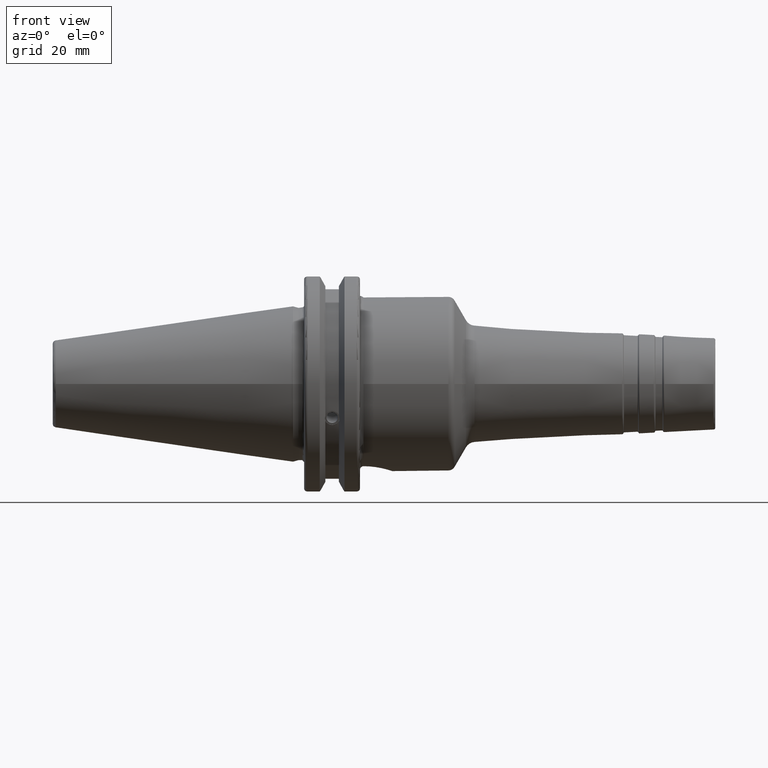
[diagram: clean part render]
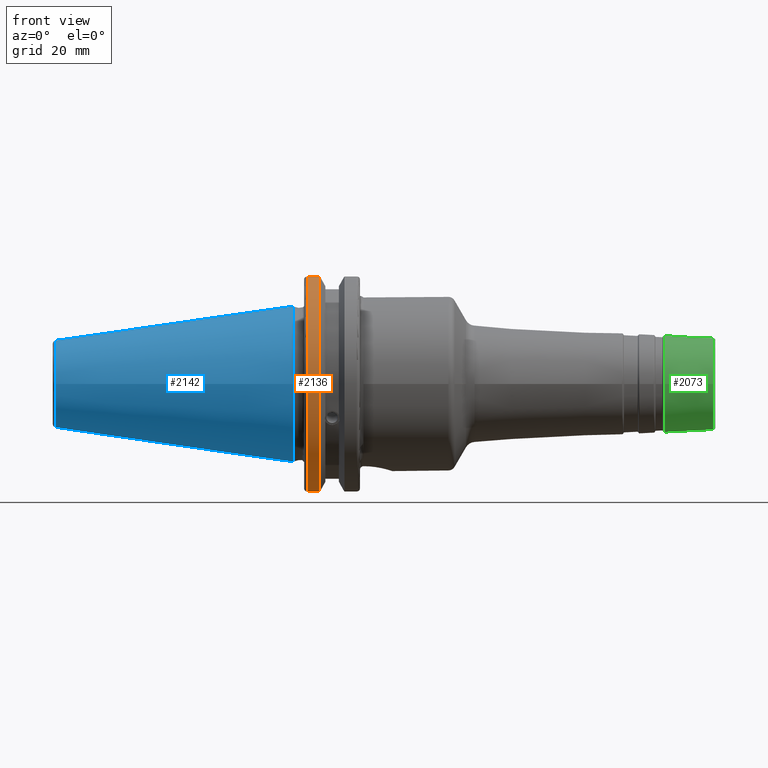
[diagram: same view with three faces highlighted in distinct colors, each labeled with its STEP entity id]
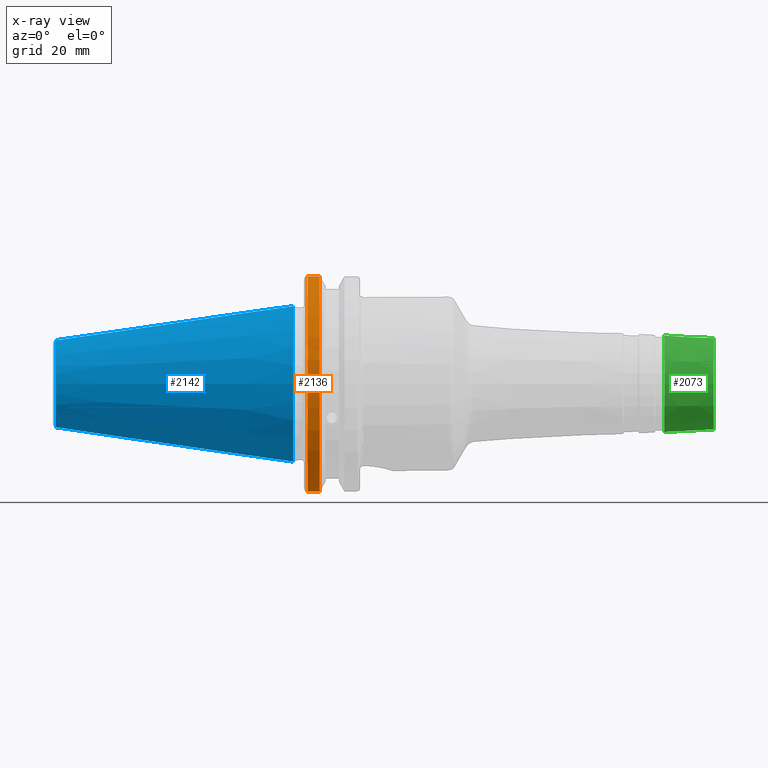
[diagram: x-ray of the same camera — body ghosted, the three highlighted faces saturated]
A machine part, front view with three faces highlighted in distinct colors.
The next image is the same camera in x-ray (body ghosted, the three faces saturated) — at least one of them is partly hidden behind the body in this view.
Their STEP definitions:

[orange] entity #2136 — the highlighted cylindrical surface (partial cylindrical patch) has radius 31.75 mm, axis along (1, 0, 0).
#174=CYLINDRICAL_SURFACE('',#2426,31.75);
#255=FACE_OUTER_BOUND('',#373,.T.);
#373=EDGE_LOOP('',(#1873,#1874,#1875,#1876));
#487=LINE('',#4075,#586);
#488=LINE('',#4081,#587);
#586=VECTOR('',#3040,10.);
#587=VECTOR('',#3043,10.);
#752=CIRCLE('',#2424,31.75);
#753=CIRCLE('',#2427,31.75);
#991=VERTEX_POINT('',#4054);
#992=VERTEX_POINT('',#4063);
#993=VERTEX_POINT('',#4074);
#994=VERTEX_POINT('',#4080);
#1304=EDGE_CURVE('',#991,#992,#752,.T.);
#1306=EDGE_CURVE('',#992,#993,#487,.T.);
#1308=EDGE_CURVE('',#994,#991,#488,.T.);
#1309=EDGE_CURVE('',#993,#994,#753,.T.);
#1873=ORIENTED_EDGE('',*,*,#1304,.F.);
#1874=ORIENTED_EDGE('',*,*,#1308,.F.);
#1875=ORIENTED_EDGE('',*,*,#1309,.F.);
#1876=ORIENTED_EDGE('',*,*,#1306,.F.);
#2136=ADVANCED_FACE('',(#255),#174,.T.);
#2424=AXIS2_PLACEMENT_3D('',#4064,#3036,#3037);
#2426=AXIS2_PLACEMENT_3D('',#4079,#3041,#3042);
#2427=AXIS2_PLACEMENT_3D('',#4082,#3044,#3045);
#3036=DIRECTION('center_axis',(-1.,0.,0.));
#3037=DIRECTION('ref_axis',(0.,-1.,1.60812264967664E-16));
#3040=DIRECTION('',(1.,0.,0.));
#3041=DIRECTION('center_axis',(1.,0.,0.));
#3042=DIRECTION('ref_axis',(0.,-1.,1.22464679914735E-16));
#3043=DIRECTION('',(-1.,0.,0.));
#3044=DIRECTION('center_axis',(1.,0.,0.));
#3045=DIRECTION('ref_axis',(0.,0.,-1.));
#4054=CARTESIAN_POINT('',(4.175,-8.67204822802685,-30.5427254764662));
#4063=CARTESIAN_POINT('',(4.175,-8.67204822802685,30.5427254764662));
#4064=CARTESIAN_POINT('Origin',(4.175,0.,0.));
#4074=CARTESIAN_POINT('',(7.60793323092436,-8.67204822802685,30.5427254764662));
#4075=CARTESIAN_POINT('',(5.39146661546218,-8.67204822802685,30.5427254764662));
#4079=CARTESIAN_POINT('Origin',(5.39146661546218,0.,0.));
#4080=CARTESIAN_POINT('',(7.60793323092436,-8.67204822802685,-30.5427254764662));
#4081=CARTESIAN_POINT('',(5.39146661546218,-8.67204822802685,-30.5427254764662));
#4082=CARTESIAN_POINT('Origin',(7.60793323092436,0.,0.));

[blue] entity #2142 — the highlighted conical surface has half-angle 8.297 deg.
#261=FACE_OUTER_BOUND('',#380,.T.);
#380=EDGE_LOOP('',(#1902,#1903,#1904,#1905,#1906,#1907,#1908));
#490=LINE('',#4138,#589);
#589=VECTOR('',#3081,17.2484375);
#755=CIRCLE('',#2433,12.3966635780937);
#756=CIRCLE('',#2434,12.3966635780937);
#760=CIRCLE('',#2438,12.3966635780937);
#763=CIRCLE('',#2443,22.225);
#764=CIRCLE('',#2444,22.225);
#998=VERTEX_POINT('',#4117);
#999=VERTEX_POINT('',#4118);
#1000=VERTEX_POINT('',#4120);
#1005=VERTEX_POINT('',#4134);
#1006=VERTEX_POINT('',#4135);
#1316=EDGE_CURVE('',#998,#999,#755,.T.);
#1317=EDGE_CURVE('',#999,#1000,#756,.T.);
#1321=EDGE_CURVE('',#1000,#998,#760,.T.);
#1324=EDGE_CURVE('',#1005,#1006,#763,.T.);
#1325=EDGE_CURVE('',#1006,#1005,#764,.T.);
#1326=EDGE_CURVE('',#1006,#999,#490,.T.);
#1902=ORIENTED_EDGE('',*,*,#1324,.F.);
#1903=ORIENTED_EDGE('',*,*,#1325,.F.);
#1904=ORIENTED_EDGE('',*,*,#1326,.T.);
#1905=ORIENTED_EDGE('',*,*,#1316,.F.);
#1906=ORIENTED_EDGE('',*,*,#1321,.F.);
#1907=ORIENTED_EDGE('',*,*,#1317,.F.);
#1908=ORIENTED_EDGE('',*,*,#1326,.F.);
#2057=CONICAL_SURFACE('',#2442,17.2484375,0.144812498238939);
#2142=ADVANCED_FACE('',(#261),#2057,.T.);
#2433=AXIS2_PLACEMENT_3D('',#4119,#3057,#3058);
#2434=AXIS2_PLACEMENT_3D('',#4121,#3059,#3060);
#2438=AXIS2_PLACEMENT_3D('',#4127,#3067,#3068);
#2442=AXIS2_PLACEMENT_3D('',#4133,#3075,#3076);
#2443=AXIS2_PLACEMENT_3D('',#4136,#3077,#3078);
#2444=AXIS2_PLACEMENT_3D('',#4137,#3079,#3080);
#3057=DIRECTION('center_axis',(-1.,0.,0.));
#3058=DIRECTION('ref_axis',(0.,-1.,3.06161699786838E-17));
#3059=DIRECTION('center_axis',(-1.,0.,0.));
#3060=DIRECTION('ref_axis',(0.,-1.,3.06161699786838E-17));
#3067=DIRECTION('center_axis',(-1.,0.,0.));
#3068=DIRECTION('ref_axis',(0.,-1.,3.06161699786838E-17));
#3075=DIRECTION('center_axis',(1.,0.,0.));
#3076=DIRECTION('ref_axis',(0.,1.,0.));
#3077=DIRECTION('center_axis',(1.,0.,0.));
#3078=DIRECTION('ref_axis',(0.,0.,-1.));
#3079=DIRECTION('center_axis',(1.,0.,0.));
#3080=DIRECTION('ref_axis',(0.,0.,-1.));
#3081=DIRECTION('',(-0.989532981063282,0.144306893071729,1.76724974695192E-17));
#4117=CARTESIAN_POINT('',(-67.3943068930717,12.3966635780937,-3.79538359275475E-15));
#4118=CARTESIAN_POINT('',(-67.3943068930718,-12.3966635780937,-1.5181534371019E-15));
#4119=CARTESIAN_POINT('Origin',(-67.3943068930717,0.,-1.89769179637738E-15));
#4120=CARTESIAN_POINT('',(-67.3943068930717,-1.5181534371019E-15,12.3966635780937));
#4121=CARTESIAN_POINT('Origin',(-67.3943068930717,0.,-1.89769179637738E-15));
#4127=CARTESIAN_POINT('Origin',(-67.3943068930717,0.,-1.89769179637738E-15));
#4133=CARTESIAN_POINT('Origin',(-34.125,0.,0.));
#4134=CARTESIAN_POINT('',(0.,22.225,0.));
#4135=CARTESIAN_POINT('',(0.,-22.225,-2.72177751110499E-15));
#4136=CARTESIAN_POINT('Origin',(0.,0.,0.));
#4137=CARTESIAN_POINT('Origin',(0.,0.,0.));
#4138=CARTESIAN_POINT('',(-34.125,-17.2484375,-2.11232437746682E-15));

[green] entity #2073 — the highlighted conical surface has half-angle 3 deg.
#192=FACE_OUTER_BOUND('',#300,.T.);
#300=EDGE_LOOP('',(#1433,#1434,#1435,#1436,#1437,#1438,#1439,#1440));
#417=LINE('',#3361,#516);
#516=VECTOR('',#2584,13.3848185972057);
#636=CIRCLE('',#2228,13.0248324840198);
#637=CIRCLE('',#2229,13.0248324840198);
#638=CIRCLE('',#2230,13.0248324840198);
#640=CIRCLE('',#2233,13.7575507230413);
#641=CIRCLE('',#2234,13.7575507230413);
#642=CIRCLE('',#2235,13.7575507230413);
#813=VERTEX_POINT('',#3351);
#814=VERTEX_POINT('',#3353);
#815=VERTEX_POINT('',#3355);
#816=VERTEX_POINT('',#3360);
#817=VERTEX_POINT('',#3362);
#818=VERTEX_POINT('',#3364);
#1063=EDGE_CURVE('',#813,#814,#636,.T.);
#1064=EDGE_CURVE('',#814,#815,#637,.T.);
#1065=EDGE_CURVE('',#815,#813,#638,.T.);
#1067=EDGE_CURVE('',#814,#816,#417,.T.);
#1068=EDGE_CURVE('',#817,#816,#640,.T.);
#1069=EDGE_CURVE('',#818,#817,#641,.T.);
#1070=EDGE_CURVE('',#816,#818,#642,.T.);
#1433=ORIENTED_EDGE('',*,*,#1065,.F.);
#1434=ORIENTED_EDGE('',*,*,#1064,.F.);
#1435=ORIENTED_EDGE('',*,*,#1067,.T.);
#1436=ORIENTED_EDGE('',*,*,#1068,.F.);
#1437=ORIENTED_EDGE('',*,*,#1069,.F.);
#1438=ORIENTED_EDGE('',*,*,#1070,.F.);
#1439=ORIENTED_EDGE('',*,*,#1067,.F.);
#1440=ORIENTED_EDGE('',*,*,#1063,.F.);
#2044=CONICAL_SURFACE('',#2232,13.3848185972057,0.0523598775598296);
#2073=ADVANCED_FACE('',(#192),#2044,.T.);
#2228=AXIS2_PLACEMENT_3D('',#3354,#2574,#2575);
#2229=AXIS2_PLACEMENT_3D('',#3356,#2576,#2577);
#2230=AXIS2_PLACEMENT_3D('',#3357,#2578,#2579);
#2232=AXIS2_PLACEMENT_3D('',#3359,#2582,#2583);
#2233=AXIS2_PLACEMENT_3D('',#3363,#2585,#2586);
#2234=AXIS2_PLACEMENT_3D('',#3365,#2587,#2588);
#2235=AXIS2_PLACEMENT_3D('',#3366,#2589,#2590);
#2574=DIRECTION('center_axis',(1.,0.,0.));
#2575=DIRECTION('ref_axis',(0.,-1.,3.06161699786838E-17));
#2576=DIRECTION('center_axis',(1.,0.,0.));
#2577=DIRECTION('ref_axis',(0.,-1.,3.06161699786838E-17));
#2578=DIRECTION('center_axis',(1.,0.,0.));
#2579=DIRECTION('ref_axis',(0.,-1.,3.06161699786838E-17));
#2582=DIRECTION('center_axis',(-1.,0.,0.));
#2583=DIRECTION('ref_axis',(0.,1.,0.));
#2584=DIRECTION('',(-0.998629534754574,-0.0523359562429436,-6.40930612932368E-18));
#2585=DIRECTION('center_axis',(-1.,0.,0.));
#2586=DIRECTION('ref_axis',(0.,-1.,3.06161699786838E-17));
#2587=DIRECTION('center_axis',(-1.,0.,0.));
#2588=DIRECTION('ref_axis',(0.,-1.,3.06161699786838E-17));
#2589=DIRECTION('center_axis',(-1.,0.,0.));
#2590=DIRECTION('ref_axis',(0.,-1.,3.06161699786838E-17));
#3351=CARTESIAN_POINT('',(119.526167978121,-1.59508194109854E-15,13.0248324840198));
#3353=CARTESIAN_POINT('',(119.526167978121,-13.0248324840198,-1.59508194109854E-15));
#3354=CARTESIAN_POINT('Origin',(119.526167978121,0.,-1.99385242637317E-15));
#3355=CARTESIAN_POINT('',(119.526167978121,13.0248324840198,-7.97540970549268E-16));
#3356=CARTESIAN_POINT('Origin',(119.526167978121,0.,-1.99385242637317E-15));
#3357=CARTESIAN_POINT('Origin',(119.526167978121,0.,-1.99385242637317E-15));
#3359=CARTESIAN_POINT('Origin',(112.657223746739,0.,0.));
#3360=CARTESIAN_POINT('',(105.545071105762,-13.7575507230413,-1.68481404570799E-15));
#3361=CARTESIAN_POINT('',(112.657223746739,-13.3848185972057,-1.63916752522359E-15));
#3362=CARTESIAN_POINT('',(105.545071105762,13.7575507230413,-4.21203511426997E-15));
#3363=CARTESIAN_POINT('Origin',(105.545071105762,0.,-2.10601755713498E-15));
#3364=CARTESIAN_POINT('',(105.545071105762,-1.68481404570799E-15,13.7575507230413));
#3365=CARTESIAN_POINT('Origin',(105.545071105762,0.,-2.10601755713498E-15));
#3366=CARTESIAN_POINT('Origin',(105.545071105762,0.,-2.10601755713498E-15));